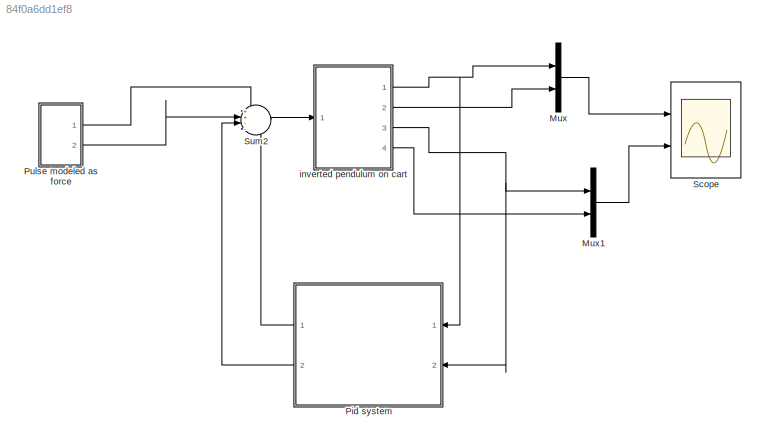
MODEL slx_84f0a6dd1ef8
KIND model
CONFIG AbsTol = auto
CONFIG EnableMultiTasking = off
CONFIG FixedStep = auto
CONFIG MaxStep = auto
CONFIG MinStep = auto
CONFIG RelTol = 1e-3
CONFIG SampleTimeConstraint = Unconstrained
CONFIG Solver = VariableStepAuto
CONFIG SolverName = VariableStepAuto
CONFIG StartTime = 0.0
CONFIG StopTime = 30
BLOCK [Mux] Mux
  DisplayOption = bar
  Inputs = 2
  Ports = [2, 1]
BLOCK [Mux] Mux1
  DisplayOption = bar
  Inputs = 2
  Ports = [2, 1]
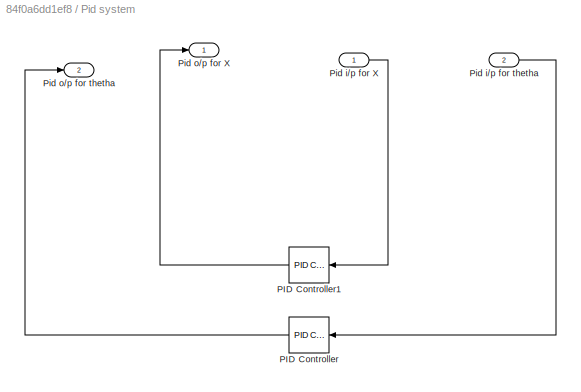
BLOCK [SubSystem] Pid system
  Ports = [2, 2]
  RequestExecContextInheritance = off
BLOCK [Reference] Pid system/PID Controller  REF=simulink/Continuous/PID Controller
  Ports = [1, 1]
  SourceBlock = simulink/Continuous/PID Controller
  SourceProductBaseCode = SL
  SourceProductName = Simulink
  SourceType = PID 1dof
BLOCK [Reference] Pid system/PID Controller1  REF=simulink/Continuous/PID Controller
  Ports = [1, 1]
  SourceBlock = simulink/Continuous/PID Controller
  SourceProductBaseCode = SL
  SourceProductName = Simulink
  SourceType = PID 1dof
BLOCK [Inport] Pid system/Pid i//p for X
  IconDisplay = Port number
BLOCK [Inport] Pid system/Pid i//p for thetha
  IconDisplay = Port number
  Port = 2
BLOCK [Outport] Pid system/Pid o//p for X
  IconDisplay = Port number
BLOCK [Outport] Pid system/Pid o//p for thetha
  IconDisplay = Port number
  Port = 2
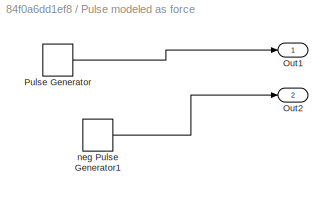
BLOCK [SubSystem] Pulse modeled as force 
  Ports = [0, 2]
  RequestExecContextInheritance = off
BLOCK [Outport] Pulse modeled as force /Out1
  IconDisplay = Port number
BLOCK [Outport] Pulse modeled as force /Out2
  IconDisplay = Port number
  Port = 2
BLOCK [DiscretePulseGenerator] Pulse modeled as force /Pulse Generator
  Amplitude = 1000
  Period = 30
  Ports = [0, 1]
  PulseType = Time based
  PulseWidth = 5
BLOCK [DiscretePulseGenerator] Pulse modeled as force /neg Pulse Generator1
  Amplitude = -1000
  Period = 30
  PhaseDelay = 15
  Ports = [0, 1]
  PulseType = Time based
  PulseWidth = 5
BLOCK [Scope] Scope
  Floating = off
  NumInputPorts = 2
  Ports = [2]
  ScopeSpecificationString = Simulink.scopes.TimeScopeBlockCfg('CurrentConfiguration', extmgr.ConfigurationSet(extmgr.Configuration('Core','General UI',true),extmgr.Configuration('Core','Source UI',true),extmgr.Configuration('Sources','WiredSimulink',true),extmgr.Configuration('Visuals','Time Domain',true,'SerializedDisplays',{struct('MinYLimReal','-14.99042','MaxYLimReal','14.6291','YLabelReal','Cart position and velocity','...<+2183ch>
BLOCK [Sum] Sum2
  IconShape = round
  InputSameDT = off
  Inputs = ++--
  OutDataTypeStr = Inherit: Inherit via internal rule
  Ports = [4, 1]
  SaturateOnIntegerOverflow = off
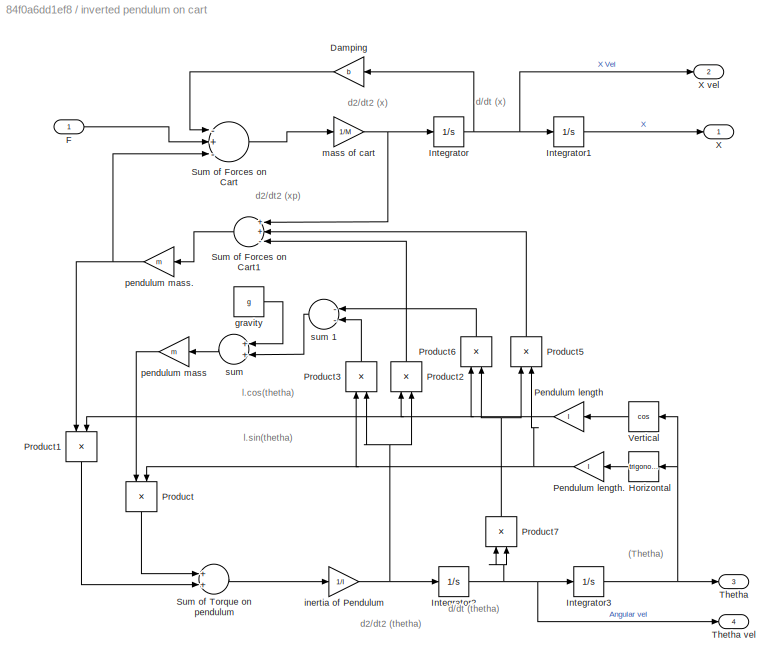
BLOCK [SubSystem] inverted pendulum on cart 
  Ports = [1, 4]
  RequestExecContextInheritance = off
BLOCK [Gain] inverted pendulum on cart /Damping
  Gain = b
  OutDataTypeStr = Inherit: Inherit via internal rule
  ParamDataTypeStr = Inherit: Inherit via internal rule
  SaturateOnIntegerOverflow = off
BLOCK [Inport] inverted pendulum on cart /F
  IconDisplay = Port number
BLOCK [Trigonometry] inverted pendulum on cart /Horizontal
  Ports = [1, 1]
BLOCK [Integrator] inverted pendulum on cart /Integrator
  Ports = [1, 1]
BLOCK [Integrator] inverted pendulum on cart /Integrator1
  Ports = [1, 1]
BLOCK [Integrator] inverted pendulum on cart /Integrator2
  Ports = [1, 1]
BLOCK [Integrator] inverted pendulum on cart /Integrator3
  Ports = [1, 1]
BLOCK [Gain] inverted pendulum on cart /Pendulum length
  Gain = l
  OutDataTypeStr = Inherit: Inherit via internal rule
  ParamDataTypeStr = Inherit: Inherit via internal rule
  SaturateOnIntegerOverflow = off
BLOCK [Gain] inverted pendulum on cart /Pendulum length.
  Gain = l
  OutDataTypeStr = Inherit: Inherit via internal rule
  ParamDataTypeStr = Inherit: Inherit via internal rule
  SaturateOnIntegerOverflow = off
BLOCK [Product] inverted pendulum on cart /Product
  InputSameDT = off
  OutDataTypeStr = Inherit: Inherit via internal rule
  Ports = [2, 1]
  RndMeth = Floor
  SaturateOnIntegerOverflow = off
BLOCK [Product] inverted pendulum on cart /Product1
  InputSameDT = off
  OutDataTypeStr = Inherit: Inherit via internal rule
  Ports = [2, 1]
  RndMeth = Floor
  SaturateOnIntegerOverflow = off
BLOCK [Product] inverted pendulum on cart /Product2
  InputSameDT = off
  OutDataTypeStr = Inherit: Inherit via internal rule
  Ports = [2, 1]
  RndMeth = Floor
  SaturateOnIntegerOverflow = off
BLOCK [Product] inverted pendulum on cart /Product3
  InputSameDT = off
  OutDataTypeStr = Inherit: Inherit via internal rule
  Ports = [2, 1]
  RndMeth = Floor
  SaturateOnIntegerOverflow = off
BLOCK [Product] inverted pendulum on cart /Product5
  InputSameDT = off
  OutDataTypeStr = Inherit: Inherit via internal rule
  Ports = [2, 1]
  RndMeth = Floor
  SaturateOnIntegerOverflow = off
BLOCK [Product] inverted pendulum on cart /Product6
  InputSameDT = off
  OutDataTypeStr = Inherit: Inherit via internal rule
  Ports = [2, 1]
  RndMeth = Floor
  SaturateOnIntegerOverflow = off
BLOCK [Product] inverted pendulum on cart /Product7
  InputSameDT = off
  OutDataTypeStr = Inherit: Inherit via internal rule
  Ports = [2, 1]
  RndMeth = Floor
  SaturateOnIntegerOverflow = off
BLOCK [Sum] inverted pendulum on cart /Sum of Forces on Cart
  InputSameDT = off
  Inputs = -+-
  OutDataTypeStr = Inherit: Inherit via internal rule
  Ports = [3, 1]
  SaturateOnIntegerOverflow = off
BLOCK [Sum] inverted pendulum on cart /Sum of Forces on Cart1
  InputSameDT = off
  Inputs = ++-
  OutDataTypeStr = Inherit: Inherit via internal rule
  Ports = [3, 1]
  SaturateOnIntegerOverflow = off
BLOCK [Sum] inverted pendulum on cart /Sum of Torque  on pendulum
  InputSameDT = off
  OutDataTypeStr = Inherit: Inherit via internal rule
  Ports = [2, 1]
  SaturateOnIntegerOverflow = off
BLOCK [Outport] inverted pendulum on cart /Thetha 
  IconDisplay = Port number
  Port = 3
BLOCK [Outport] inverted pendulum on cart /Thetha vel 
  IconDisplay = Port number
  Port = 4
BLOCK [Trigonometry] inverted pendulum on cart /Vertical
  Operator = cos
  Ports = [1, 1]
BLOCK [Outport] inverted pendulum on cart /X 
  IconDisplay = Port number
BLOCK [Outport] inverted pendulum on cart /X vel 
  IconDisplay = Port number
  Port = 2
BLOCK [Constant] inverted pendulum on cart /gravity
  Value = g
BLOCK [Gain] inverted pendulum on cart /inertia of Pendulum 
  Gain = 1/I
  OutDataTypeStr = Inherit: Inherit via internal rule
  ParamDataTypeStr = Inherit: Inherit via internal rule
  SaturateOnIntegerOverflow = off
BLOCK [Gain] inverted pendulum on cart /mass of cart
  Gain = 1/M
  OutDataTypeStr = Inherit: Inherit via internal rule
  ParamDataTypeStr = Inherit: Inherit via internal rule
  SaturateOnIntegerOverflow = off
BLOCK [Gain] inverted pendulum on cart /pendulum mass 
  Gain = m
  OutDataTypeStr = Inherit: Inherit via internal rule
  ParamDataTypeStr = Inherit: Inherit via internal rule
  SaturateOnIntegerOverflow = off
BLOCK [Gain] inverted pendulum on cart /pendulum mass. 
  Gain = m
  OutDataTypeStr = Inherit: Inherit via internal rule
  ParamDataTypeStr = Inherit: Inherit via internal rule
  SaturateOnIntegerOverflow = off
BLOCK [Sum] inverted pendulum on cart /sum 
  InputSameDT = off
  OutDataTypeStr = Inherit: Inherit via internal rule
  Ports = [2, 1]
  SaturateOnIntegerOverflow = off
BLOCK [Sum] inverted pendulum on cart /sum 1
  InputSameDT = off
  Inputs = --
  OutDataTypeStr = Inherit: Inherit via internal rule
  Ports = [2, 1]
  SaturateOnIntegerOverflow = off
ANNOTATION inverted pendulum on cart : (Thetha)
ANNOTATION inverted pendulum on cart : d/dt (thetha)
ANNOTATION inverted pendulum on cart : d/dt (x)
ANNOTATION inverted pendulum on cart : d2/dt2 (thetha)
ANNOTATION inverted pendulum on cart : d2/dt2 (x)
ANNOTATION inverted pendulum on cart : d2/dt2 (xp)
ANNOTATION inverted pendulum on cart : l.cos(thetha)
ANNOTATION inverted pendulum on cart : l.sin(thetha)
LINE Mux1:1 -> Scope:2
LINE Mux:1 -> Scope:1
LINE Pid system/PID Controller1:1 -> Pid system/Pid o//p for X:1
LINE Pid system/PID Controller:1 -> Pid system/Pid o//p for thetha:1
LINE Pid system/Pid i//p for X:1 -> Pid system/PID Controller1:1
LINE Pid system/Pid i//p for thetha:1 -> Pid system/PID Controller:1
LINE Pid system:1 -> Sum2:4
LINE Pid system:2 -> Sum2:3
LINE Pulse modeled as force /Pulse Generator:1 -> Pulse modeled as force /Out1:1
LINE Pulse modeled as force /neg Pulse Generator1:1 -> Pulse modeled as force /Out2:1
LINE Pulse modeled as force :1 -> Sum2:1
LINE Pulse modeled as force :2 -> Sum2:2
LINE Sum2:1 -> inverted pendulum on cart :1
LINE inverted pendulum on cart /Damping:1 -> inverted pendulum on cart /Sum of Forces on Cart:1
LINE inverted pendulum on cart /F:1 -> inverted pendulum on cart /Sum of Forces on Cart:2
LINE inverted pendulum on cart /Horizontal:1 -> inverted pendulum on cart /Pendulum length.:1
LINE inverted pendulum on cart /Integrator1:1 -> inverted pendulum on cart /X :1
NET inverted pendulum on cart /Integrator2:1 -> inverted pendulum on cart /Integrator3:1, inverted pendulum on cart /Product7:1, inverted pendulum on cart /Product7:2, inverted pendulum on cart /Thetha vel :1
NET inverted pendulum on cart /Integrator3:1 -> inverted pendulum on cart /Horizontal:1, inverted pendulum on cart /Thetha :1, inverted pendulum on cart /Vertical:1
NET inverted pendulum on cart /Integrator:1 -> inverted pendulum on cart /Damping:1, inverted pendulum on cart /Integrator1:1, inverted pendulum on cart /X vel :1
NET inverted pendulum on cart /Pendulum length.:1 -> inverted pendulum on cart /Product3:1, inverted pendulum on cart /Product5:2, inverted pendulum on cart /Product:2
NET inverted pendulum on cart /Pendulum length:1 -> inverted pendulum on cart /Product1:2, inverted pendulum on cart /Product2:1, inverted pendulum on cart /Product6:1
LINE inverted pendulum on cart /Product1:1 -> inverted pendulum on cart /Sum of Torque  on pendulum:2
LINE inverted pendulum on cart /Product2:1 -> inverted pendulum on cart /Sum of Forces on Cart1:3
LINE inverted pendulum on cart /Product3:1 -> inverted pendulum on cart /sum 1:2
LINE inverted pendulum on cart /Product5:1 -> inverted pendulum on cart /Sum of Forces on Cart1:2
LINE inverted pendulum on cart /Product6:1 -> inverted pendulum on cart /sum 1:1
NET inverted pendulum on cart /Product7:1 -> inverted pendulum on cart /Product5:1, inverted pendulum on cart /Product6:2
LINE inverted pendulum on cart /Product:1 -> inverted pendulum on cart /Sum of Torque  on pendulum:1
LINE inverted pendulum on cart /Sum of Forces on Cart1:1 -> inverted pendulum on cart /pendulum mass. :1
LINE inverted pendulum on cart /Sum of Forces on Cart:1 -> inverted pendulum on cart /mass of cart:1
LINE inverted pendulum on cart /Sum of Torque  on pendulum:1 -> inverted pendulum on cart /inertia of Pendulum :1
LINE inverted pendulum on cart /Vertical:1 -> inverted pendulum on cart /Pendulum length:1
LINE inverted pendulum on cart /gravity:1 -> inverted pendulum on cart /sum :1
NET inverted pendulum on cart /inertia of Pendulum :1 -> inverted pendulum on cart /Integrator2:1, inverted pendulum on cart /Product2:2, inverted pendulum on cart /Product3:2
NET inverted pendulum on cart /mass of cart:1 -> inverted pendulum on cart /Integrator:1, inverted pendulum on cart /Sum of Forces on Cart1:1
LINE inverted pendulum on cart /pendulum mass :1 -> inverted pendulum on cart /Product:1
NET inverted pendulum on cart /pendulum mass. :1 -> inverted pendulum on cart /Product1:1, inverted pendulum on cart /Sum of Forces on Cart:3
LINE inverted pendulum on cart /sum 1:1 -> inverted pendulum on cart /sum :2
LINE inverted pendulum on cart /sum :1 -> inverted pendulum on cart /pendulum mass :1
NET inverted pendulum on cart :1 -> Mux:1, Pid system:1
LINE inverted pendulum on cart :2 -> Mux:2
NET inverted pendulum on cart :3 -> Mux1:1, Pid system:2
LINE inverted pendulum on cart :4 -> Mux1:2
note: NET lines group one-source signal fan-out (src -> all destinations, sorted); 1:1 wires keep LINE
